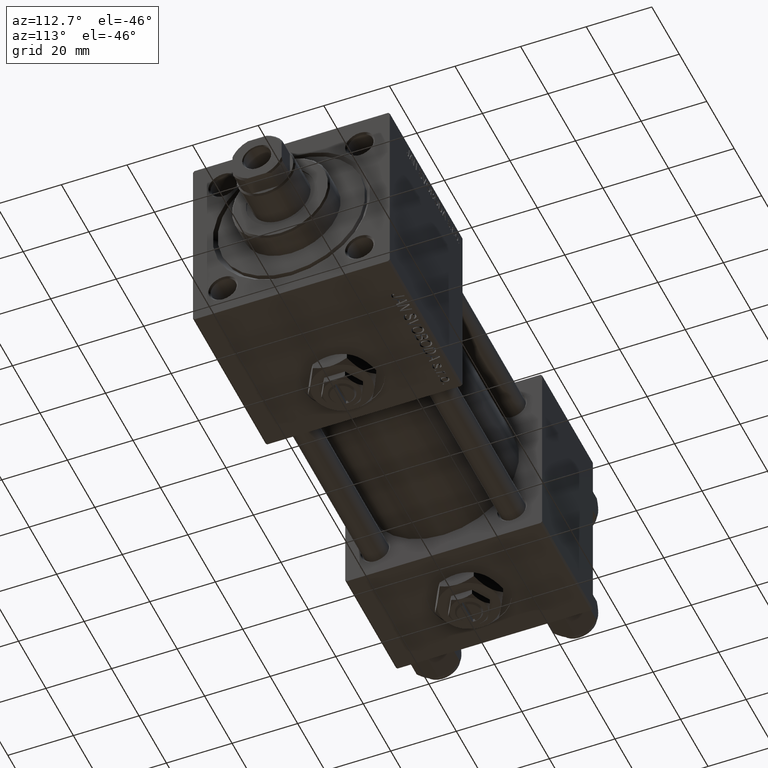
[diagram: clean part render]
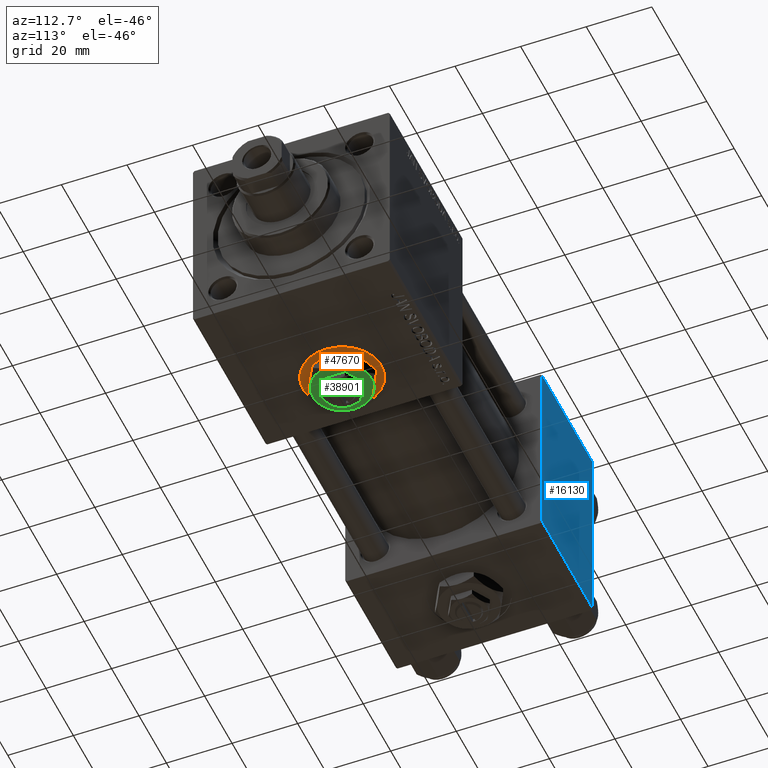
[diagram: same view with three faces highlighted in distinct colors, each labeled with its STEP entity id]
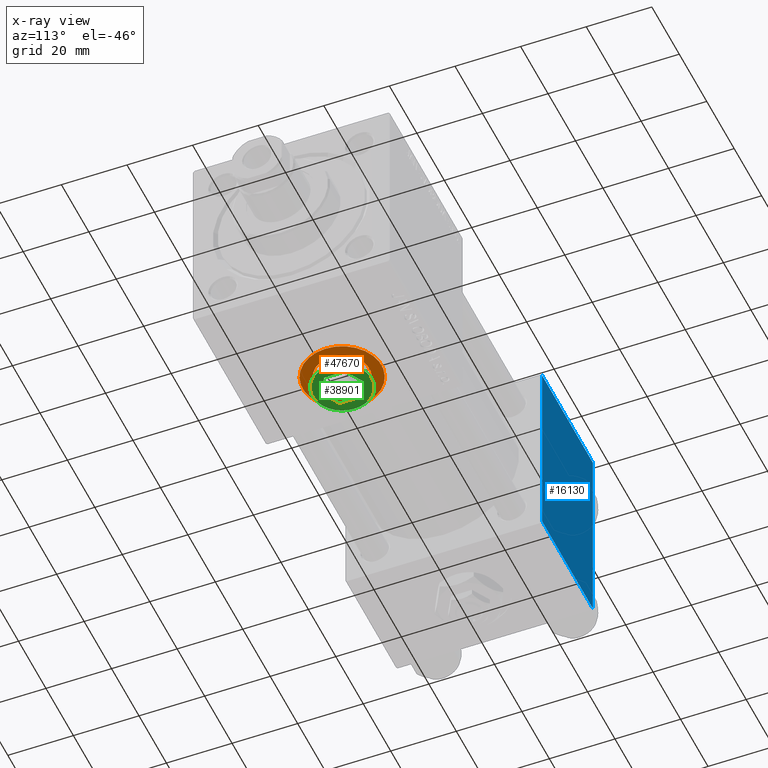
[diagram: x-ray of the same camera — body ghosted, the three highlighted faces saturated]
A machine part, auxiliary view with three faces highlighted in distinct colors.
The next image is the same camera in x-ray (body ghosted, the three faces saturated) — at least one of them is partly hidden behind the body in this view.
Their STEP definitions:

[orange] entity #47670 — the highlighted planar face has unit normal (0, 0, -1).
#6113 = AXIS2_PLACEMENT_3D ( 'NONE', #50347, #26296, #9917 ) ;
#9741 = CARTESIAN_POINT ( 'NONE',  ( 123.0000000000000000, 4.939023110930435178E-15, -29.79999999999999716 ) ) ;
#9788 = PLANE ( 'NONE',  #22292 ) ;
#9917 = DIRECTION ( 'NONE',  ( -1.000000000000000000, 0.000000000000000000, 0.000000000000000000 ) ) ;
#10368 = EDGE_LOOP ( 'NONE', ( #45612, #50103 ) ) ;
#16113 = VERTEX_POINT ( 'NONE', #22507 ) ;
#19252 = DIRECTION ( 'NONE',  ( -1.000000000000000000, 0.000000000000000000, 0.000000000000000000 ) ) ;
#19732 = EDGE_LOOP ( 'NONE', ( #50880, #27054 ) ) ;
#19982 = CARTESIAN_POINT ( 'NONE',  ( 119.3300000000000125, 4.489577735643358162E-15, -29.79999999999999716 ) ) ;
#20477 = VERTEX_POINT ( 'NONE', #19982 ) ;
#21566 = VERTEX_POINT ( 'NONE', #9741 ) ;
#22292 = AXIS2_PLACEMENT_3D ( 'NONE', #26946, #35390, #42799 ) ;
#22507 = CARTESIAN_POINT ( 'NONE',  ( 102.6700000000000017, 3.469446951953613794E-15, -29.79999999999999716 ) ) ;
#26296 = DIRECTION ( 'NONE',  ( 0.000000000000000000, 0.000000000000000000, -1.000000000000000000 ) ) ;
#26946 = CARTESIAN_POINT ( 'NONE',  ( 111.0000000000000000, 3.469446951953613794E-15, -29.79999999999999716 ) ) ;
#27054 = ORIENTED_EDGE ( 'NONE', *, *, #35282, .F. ) ;
#27120 = AXIS2_PLACEMENT_3D ( 'NONE', #44015, #32383, #40063 ) ;
#28761 = EDGE_CURVE ( 'NONE', #36924, #21566, #33580, .T. ) ;
#29860 = FACE_OUTER_BOUND ( 'NONE', #10368, .T. ) ;
#30178 = AXIS2_PLACEMENT_3D ( 'NONE', #35445, #51559, #35708 ) ;
#31758 = CARTESIAN_POINT ( 'NONE',  ( 99.00000000000000000, 3.469446951953613794E-15, -29.79999999999999716 ) ) ;
#32383 = DIRECTION ( 'NONE',  ( 0.000000000000000000, 0.000000000000000000, -1.000000000000000000 ) ) ;
#33580 = CIRCLE ( 'NONE', #30178, 11.99999999999999645 ) ;
#33823 = FACE_BOUND ( 'NONE', #19732, .T. ) ;
#33873 = CIRCLE ( 'NONE', #27120, 11.99999999999999645 ) ;
#34514 = CIRCLE ( 'NONE', #42096, 8.330000000000003624 ) ;
#35140 = DIRECTION ( 'NONE',  ( 0.000000000000000000, 0.000000000000000000, -1.000000000000000000 ) ) ;
#35282 = EDGE_CURVE ( 'NONE', #20477, #16113, #34514, .T. ) ;
#35390 = DIRECTION ( 'NONE',  ( 0.000000000000000000, 0.000000000000000000, -1.000000000000000000 ) ) ;
#35445 = CARTESIAN_POINT ( 'NONE',  ( 111.0000000000000000, 3.469446951953613794E-15, -29.79999999999999716 ) ) ;
#35708 = DIRECTION ( 'NONE',  ( -1.000000000000000000, 0.000000000000000000, 0.000000000000000000 ) ) ;
#36924 = VERTEX_POINT ( 'NONE', #31758 ) ;
#38313 = CARTESIAN_POINT ( 'NONE',  ( 111.0000000000000000, 3.469446951953613794E-15, -29.79999999999999716 ) ) ;
#38857 = EDGE_CURVE ( 'NONE', #21566, #36924, #33873, .T. ) ;
#40063 = DIRECTION ( 'NONE',  ( -1.000000000000000000, 0.000000000000000000, 0.000000000000000000 ) ) ;
#42096 = AXIS2_PLACEMENT_3D ( 'NONE', #38313, #35140, #19252 ) ;
#42799 = DIRECTION ( 'NONE',  ( -1.000000000000000000, 0.000000000000000000, -0.000000000000000000 ) ) ;
#43674 = EDGE_CURVE ( 'NONE', #16113, #20477, #51677, .T. ) ;
#44015 = CARTESIAN_POINT ( 'NONE',  ( 111.0000000000000000, 3.469446951953613794E-15, -29.79999999999999716 ) ) ;
#45612 = ORIENTED_EDGE ( 'NONE', *, *, #28761, .T. ) ;
#47670 = ADVANCED_FACE ( 'NONE', ( #33823, #29860 ), #9788, .T. ) ;
#50103 = ORIENTED_EDGE ( 'NONE', *, *, #38857, .T. ) ;
#50347 = CARTESIAN_POINT ( 'NONE',  ( 111.0000000000000000, 3.469446951953613794E-15, -29.79999999999999716 ) ) ;
#50880 = ORIENTED_EDGE ( 'NONE', *, *, #43674, .F. ) ;
#51559 = DIRECTION ( 'NONE',  ( 0.000000000000000000, 0.000000000000000000, -1.000000000000000000 ) ) ;
#51677 = CIRCLE ( 'NONE', #6113, 8.330000000000003624 ) ;

[blue] entity #16130 — the highlighted planar face has unit normal (0, 1, 0).
#3388 = ORIENTED_EDGE ( 'NONE', *, *, #6766, .F. ) ;
#4555 = AXIS2_PLACEMENT_3D ( 'NONE', #48123, #44154, #47861 ) ;
#6766 = EDGE_CURVE ( 'NONE', #12815, #21113, #52026, .T. ) ;
#11536 = CARTESIAN_POINT ( 'NONE',  ( 37.00000000000000000, 29.99999999999999289, 29.50000000000000000 ) ) ;
#11837 = EDGE_CURVE ( 'NONE', #22795, #26246, #27517, .T. ) ;
#12345 = EDGE_CURVE ( 'NONE', #12815, #22795, #27907, .T. ) ;
#12815 = VERTEX_POINT ( 'NONE', #49764 ) ;
#15812 = DIRECTION ( 'NONE',  ( 0.000000000000000000, 0.000000000000000000, -1.000000000000000000 ) ) ;
#16130 = ADVANCED_FACE ( 'NONE', ( #37193 ), #23532, .T. ) ;
#18768 = VECTOR ( 'NONE', #15812, 1000.000000000000000 ) ;
#19914 = LINE ( 'NONE', #31712, #21835 ) ;
#20037 = CARTESIAN_POINT ( 'NONE',  ( 0.000000000000000000, 29.99999999999999289, 30.00000000000000000 ) ) ;
#21113 = VERTEX_POINT ( 'NONE', #52046 ) ;
#21835 = VECTOR ( 'NONE', #36462, 1000.000000000000000 ) ;
#22795 = VERTEX_POINT ( 'NONE', #34508 ) ;
#23532 = PLANE ( 'NONE',  #4555 ) ;
#26246 = VERTEX_POINT ( 'NONE', #46854 ) ;
#27517 = LINE ( 'NONE', #36231, #51689 ) ;
#27907 = LINE ( 'NONE', #11536, #44950 ) ;
#31471 = DIRECTION ( 'NONE',  ( 0.000000000000000000, 0.000000000000000000, -1.000000000000000000 ) ) ;
#31628 = EDGE_CURVE ( 'NONE', #26246, #21113, #19914, .T. ) ;
#31712 = CARTESIAN_POINT ( 'NONE',  ( 37.00000000000000000, 29.99999999999999289, -29.50000000000000000 ) ) ;
#34508 = CARTESIAN_POINT ( 'NONE',  ( 37.00000000000000000, 29.99999999999999289, 29.50000000000000000 ) ) ;
#36231 = CARTESIAN_POINT ( 'NONE',  ( 37.00000000000000000, 29.99999999999999289, 30.00000000000000000 ) ) ;
#36462 = DIRECTION ( 'NONE',  ( -1.000000000000000000, 0.000000000000000000, 0.000000000000000000 ) ) ;
#37193 = FACE_OUTER_BOUND ( 'NONE', #41753, .T. ) ;
#38551 = ORIENTED_EDGE ( 'NONE', *, *, #31628, .T. ) ;
#41753 = EDGE_LOOP ( 'NONE', ( #51159, #38551, #3388, #48799 ) ) ;
#44154 = DIRECTION ( 'NONE',  ( -0.000000000000000000, 1.000000000000000000, 0.000000000000000000 ) ) ;
#44950 = VECTOR ( 'NONE', #47210, 1000.000000000000000 ) ;
#46854 = CARTESIAN_POINT ( 'NONE',  ( 37.00000000000000000, 29.99999999999999289, -29.50000000000000000 ) ) ;
#47210 = DIRECTION ( 'NONE',  ( 1.000000000000000000, 0.000000000000000000, 0.000000000000000000 ) ) ;
#47861 = DIRECTION ( 'NONE',  ( 0.000000000000000000, -0.000000000000000000, 1.000000000000000000 ) ) ;
#48123 = CARTESIAN_POINT ( 'NONE',  ( 37.00000000000000000, 29.99999999999999289, 30.00000000000000000 ) ) ;
#48799 = ORIENTED_EDGE ( 'NONE', *, *, #12345, .T. ) ;
#49764 = CARTESIAN_POINT ( 'NONE',  ( 0.000000000000000000, 29.99999999999999289, 29.50000000000000000 ) ) ;
#51159 = ORIENTED_EDGE ( 'NONE', *, *, #11837, .T. ) ;
#51689 = VECTOR ( 'NONE', #31471, 1000.000000000000000 ) ;
#52026 = LINE ( 'NONE', #20037, #18768 ) ;
#52046 = CARTESIAN_POINT ( 'NONE',  ( 0.000000000000000000, 29.99999999999999289, -29.50000000000000000 ) ) ;

[green] entity #38901 — the highlighted planar face has unit normal (0, 0, -1).
#518 = CARTESIAN_POINT ( 'NONE',  ( -4.500000000000000000, 7.794228634059947147, 4.299999999999999822 ) ) ;
#1428 = VERTEX_POINT ( 'NONE', #14425 ) ;
#1433 = VERTEX_POINT ( 'NONE', #30535 ) ;
#1462 = CARTESIAN_POINT ( 'NONE',  ( -5.500000000000000000, 3.175426480542941743, 4.299999999999999822 ) ) ;
#2830 = AXIS2_PLACEMENT_3D ( 'NONE', #29660, #49757, #13812 ) ;
#2893 = DIRECTION ( 'NONE',  ( 1.000000000000000000, 0.000000000000000000, 0.000000000000000000 ) ) ;
#3013 = DIRECTION ( 'NONE',  ( 0.000000000000000000, 0.000000000000000000, 1.000000000000000000 ) ) ;
#3079 = CARTESIAN_POINT ( 'NONE',  ( -1.343581385738006573E-15, -6.350852961085881709, 4.299999999999999822 ) ) ;
#3661 = ORIENTED_EDGE ( 'NONE', *, *, #29084, .F. ) ;
#3689 = CARTESIAN_POINT ( 'NONE',  ( 0.000000000000000000, 0.000000000000000000, 4.299999999999999822 ) ) ;
#3869 = DIRECTION ( 'NONE',  ( 0.000000000000000000, 0.000000000000000000, 1.000000000000000000 ) ) ;
#4597 = CARTESIAN_POINT ( 'NONE',  ( 4.500000000000000000, 7.794228634059947147, 4.299999999999999822 ) ) ;
#5863 = CARTESIAN_POINT ( 'NONE',  ( -5.500000000000000000, -3.175426480542942187, 4.299999999999999822 ) ) ;
#6339 = LINE ( 'NONE', #47528, #43677 ) ;
#6470 = CARTESIAN_POINT ( 'NONE',  ( 0.000000000000000000, 0.000000000000000000, 4.299999999999999822 ) ) ;
#7157 = EDGE_CURVE ( 'NONE', #9420, #51857, #48002, .T. ) ;
#7429 = CARTESIAN_POINT ( 'NONE',  ( 5.500000000000000888, -3.175426480542940855, 4.299999999999999822 ) ) ;
#7714 = EDGE_CURVE ( 'NONE', #46054, #37078, #40759, .T. ) ;
#8742 = VERTEX_POINT ( 'NONE', #27456 ) ;
#8964 = CIRCLE ( 'NONE', #36799, 9.000000000000000000 ) ;
#9420 = VERTEX_POINT ( 'NONE', #50345 ) ;
#10983 = EDGE_CURVE ( 'NONE', #24858, #9420, #42053, .T. ) ;
#11075 = DIRECTION ( 'NONE',  ( 1.000000000000000000, 0.000000000000000000, 0.000000000000000000 ) ) ;
#11101 = AXIS2_PLACEMENT_3D ( 'NONE', #6470, #3013, #19119 ) ;
#11787 = CARTESIAN_POINT ( 'NONE',  ( 0.000000000000000000, 0.000000000000000000, 4.299999999999999822 ) ) ;
#12105 = EDGE_LOOP ( 'NONE', ( #36665, #22206, #3661, #40533, #50741, #37081 ) ) ;
#12616 = EDGE_CURVE ( 'NONE', #21024, #24858, #49815, .T. ) ;
#12779 = AXIS2_PLACEMENT_3D ( 'NONE', #38600, #34630, #31435 ) ;
#13811 = CARTESIAN_POINT ( 'NONE',  ( 0.000000000000000000, 0.000000000000000000, 4.299999999999999822 ) ) ;
#13812 = DIRECTION ( 'NONE',  ( 1.000000000000000000, 0.000000000000000000, 0.000000000000000000 ) ) ;
#14267 = CARTESIAN_POINT ( 'NONE',  ( 0.000000000000000000, 0.000000000000000000, 4.299999999999999822 ) ) ;
#14425 = CARTESIAN_POINT ( 'NONE',  ( 0.000000000000000000, 6.350852961085883486, 4.299999999999999822 ) ) ;
#14457 = VERTEX_POINT ( 'NONE', #43105 ) ;
#15228 = ORIENTED_EDGE ( 'NONE', *, *, #38499, .T. ) ;
#16197 = VECTOR ( 'NONE', #21964, 1000.000000000000000 ) ;
#17069 = EDGE_CURVE ( 'NONE', #37078, #22821, #45100, .T. ) ;
#17511 = DIRECTION ( 'NONE',  ( 1.000000000000000000, 0.000000000000000000, 0.000000000000000000 ) ) ;
#18480 = DIRECTION ( 'NONE',  ( 0.000000000000000000, 0.000000000000000000, 1.000000000000000000 ) ) ;
#18579 = ORIENTED_EDGE ( 'NONE', *, *, #17069, .T. ) ;
#19005 = DIRECTION ( 'NONE',  ( 0.000000000000000000, 0.000000000000000000, 1.000000000000000000 ) ) ;
#19119 = DIRECTION ( 'NONE',  ( 1.000000000000000000, 0.000000000000000000, 0.000000000000000000 ) ) ;
#19343 = VECTOR ( 'NONE', #27096, 1000.000000000000000 ) ;
#20229 = PLANE ( 'NONE',  #39795 ) ;
#21024 = VERTEX_POINT ( 'NONE', #46767 ) ;
#21964 = DIRECTION ( 'NONE',  ( 0.8660254037844387076, -0.4999999999999998890, 0.000000000000000000 ) ) ;
#22206 = ORIENTED_EDGE ( 'NONE', *, *, #32259, .F. ) ;
#22647 = DIRECTION ( 'NONE',  ( -0.8660254037844385966, -0.4999999999999999445, 0.000000000000000000 ) ) ;
#22821 = VERTEX_POINT ( 'NONE', #27626 ) ;
#22861 = LINE ( 'NONE', #42164, #19343 ) ;
#24486 = VERTEX_POINT ( 'NONE', #4597 ) ;
#24586 = EDGE_CURVE ( 'NONE', #24486, #46054, #8964, .T. ) ;
#24858 = VERTEX_POINT ( 'NONE', #37475 ) ;
#27096 = DIRECTION ( 'NONE',  ( -0.8660254037844387076, 0.4999999999999999445, 0.000000000000000000 ) ) ;
#27130 = LINE ( 'NONE', #43238, #36483 ) ;
#27456 = CARTESIAN_POINT ( 'NONE',  ( 5.499999999999999112, 3.175426480542943075, 4.299999999999999822 ) ) ;
#27626 = CARTESIAN_POINT ( 'NONE',  ( -4.499999999999998224, -7.794228634059947147, 4.299999999999999822 ) ) ;
#27785 = ORIENTED_EDGE ( 'NONE', *, *, #7714, .T. ) ;
#28135 = AXIS2_PLACEMENT_3D ( 'NONE', #3689, #19005, #2893 ) ;
#29084 = EDGE_CURVE ( 'NONE', #51857, #8742, #6339, .T. ) ;
#29660 = CARTESIAN_POINT ( 'NONE',  ( 0.000000000000000000, 0.000000000000000000, 4.299999999999999822 ) ) ;
#30368 = DIRECTION ( 'NONE',  ( -2.731481088613017227E-16, 1.000000000000000000, 0.000000000000000000 ) ) ;
#30508 = DIRECTION ( 'NONE',  ( 0.000000000000000000, -1.000000000000000000, 0.000000000000000000 ) ) ;
#30535 = CARTESIAN_POINT ( 'NONE',  ( 8.999999999999998224, 0.000000000000000000, 4.299999999999999822 ) ) ;
#31435 = DIRECTION ( 'NONE',  ( 1.000000000000000000, 0.000000000000000000, 0.000000000000000000 ) ) ;
#31679 = EDGE_LOOP ( 'NONE', ( #41181, #37500, #46303, #27785, #18579, #15228 ) ) ;
#32259 = EDGE_CURVE ( 'NONE', #8742, #1428, #22861, .T. ) ;
#34630 = DIRECTION ( 'NONE',  ( 0.000000000000000000, 0.000000000000000000, 1.000000000000000000 ) ) ;
#34796 = VECTOR ( 'NONE', #30508, 1000.000000000000000 ) ;
#35832 = FACE_BOUND ( 'NONE', #12105, .T. ) ;
#36483 = VECTOR ( 'NONE', #22647, 1000.000000000000114 ) ;
#36665 = ORIENTED_EDGE ( 'NONE', *, *, #43378, .F. ) ;
#36799 = AXIS2_PLACEMENT_3D ( 'NONE', #14267, #18480, #11075 ) ;
#37078 = VERTEX_POINT ( 'NONE', #43244 ) ;
#37081 = ORIENTED_EDGE ( 'NONE', *, *, #12616, .F. ) ;
#37475 = CARTESIAN_POINT ( 'NONE',  ( -5.500000000000000000, -3.175426480542942187, 4.299999999999999822 ) ) ;
#37500 = ORIENTED_EDGE ( 'NONE', *, *, #47378, .T. ) ;
#38075 = EDGE_CURVE ( 'NONE', #14457, #1433, #43963, .T. ) ;
#38499 = EDGE_CURVE ( 'NONE', #22821, #14457, #43144, .T. ) ;
#38600 = CARTESIAN_POINT ( 'NONE',  ( 0.000000000000000000, 0.000000000000000000, 4.299999999999999822 ) ) ;
#38901 = ADVANCED_FACE ( 'NONE', ( #44284, #35832 ), #20229, .T. ) ;
#39786 = DIRECTION ( 'NONE',  ( 1.000000000000000000, 0.000000000000000000, -0.000000000000000000 ) ) ;
#39795 = AXIS2_PLACEMENT_3D ( 'NONE', #11787, #3869, #39786 ) ;
#39799 = DIRECTION ( 'NONE',  ( 0.8660254037844388186, 0.4999999999999997224, 0.000000000000000000 ) ) ;
#40533 = ORIENTED_EDGE ( 'NONE', *, *, #7157, .F. ) ;
#40759 = CIRCLE ( 'NONE', #28135, 9.000000000000000000 ) ;
#41181 = ORIENTED_EDGE ( 'NONE', *, *, #38075, .T. ) ;
#42053 = LINE ( 'NONE', #5863, #16197 ) ;
#42164 = CARTESIAN_POINT ( 'NONE',  ( 5.499999999999999112, 3.175426480542943075, 4.299999999999999822 ) ) ;
#42501 = CIRCLE ( 'NONE', #2830, 9.000000000000000000 ) ;
#43105 = CARTESIAN_POINT ( 'NONE',  ( 4.499999999999997335, -7.794228634059948035, 4.299999999999999822 ) ) ;
#43144 = CIRCLE ( 'NONE', #11101, 9.000000000000000000 ) ;
#43238 = CARTESIAN_POINT ( 'NONE',  ( 0.000000000000000000, 6.350852961085883486, 4.299999999999999822 ) ) ;
#43244 = CARTESIAN_POINT ( 'NONE',  ( -9.000000000000000000, 0.000000000000000000, 4.299999999999999822 ) ) ;
#43378 = EDGE_CURVE ( 'NONE', #1428, #21024, #27130, .T. ) ;
#43677 = VECTOR ( 'NONE', #30368, 1000.000000000000000 ) ;
#43963 = CIRCLE ( 'NONE', #12779, 9.000000000000000000 ) ;
#44284 = FACE_OUTER_BOUND ( 'NONE', #31679, .T. ) ;
#45100 = CIRCLE ( 'NONE', #45919, 9.000000000000000000 ) ;
#45771 = VECTOR ( 'NONE', #39799, 1000.000000000000000 ) ;
#45919 = AXIS2_PLACEMENT_3D ( 'NONE', #13811, #50011, #17511 ) ;
#46054 = VERTEX_POINT ( 'NONE', #518 ) ;
#46303 = ORIENTED_EDGE ( 'NONE', *, *, #24586, .T. ) ;
#46767 = CARTESIAN_POINT ( 'NONE',  ( -5.500000000000000000, 3.175426480542941743, 4.299999999999999822 ) ) ;
#47378 = EDGE_CURVE ( 'NONE', #1433, #24486, #42501, .T. ) ;
#47528 = CARTESIAN_POINT ( 'NONE',  ( 5.500000000000000888, -3.175426480542940855, 4.299999999999999822 ) ) ;
#48002 = LINE ( 'NONE', #3079, #45771 ) ;
#49757 = DIRECTION ( 'NONE',  ( 0.000000000000000000, 0.000000000000000000, 1.000000000000000000 ) ) ;
#49815 = LINE ( 'NONE', #1462, #34796 ) ;
#50011 = DIRECTION ( 'NONE',  ( 0.000000000000000000, 0.000000000000000000, 1.000000000000000000 ) ) ;
#50345 = CARTESIAN_POINT ( 'NONE',  ( -1.343581385738006573E-15, -6.350852961085881709, 4.299999999999999822 ) ) ;
#50741 = ORIENTED_EDGE ( 'NONE', *, *, #10983, .F. ) ;
#51857 = VERTEX_POINT ( 'NONE', #7429 ) ;